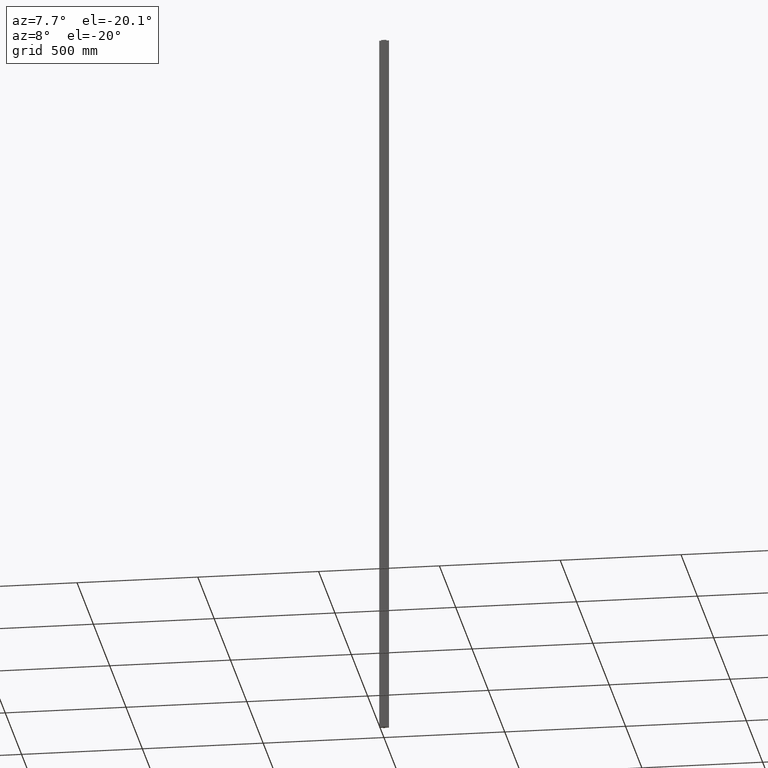
[diagram: clean part render]
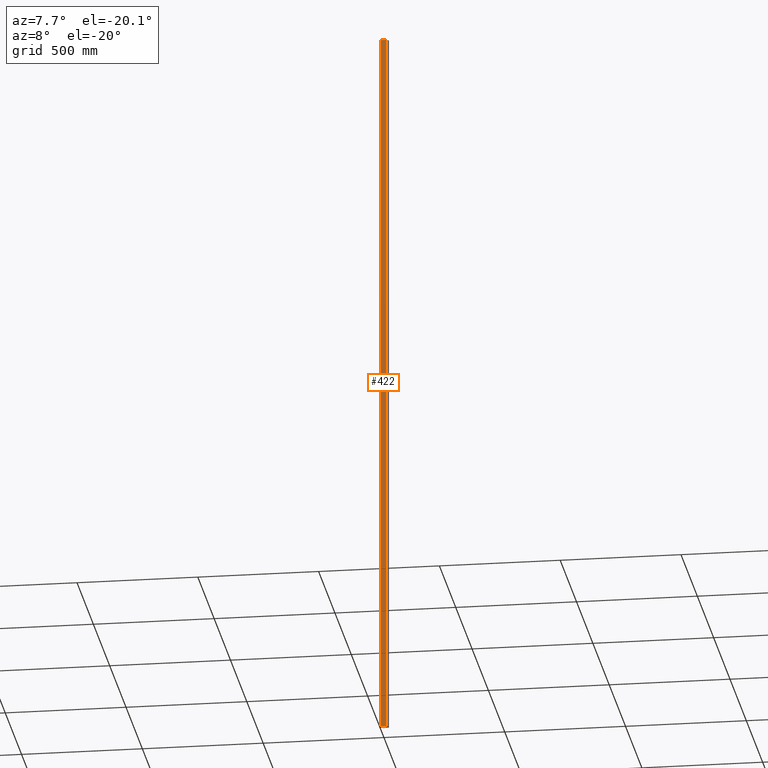
[diagram: same view with one face highlighted and labeled with its STEP entity id]
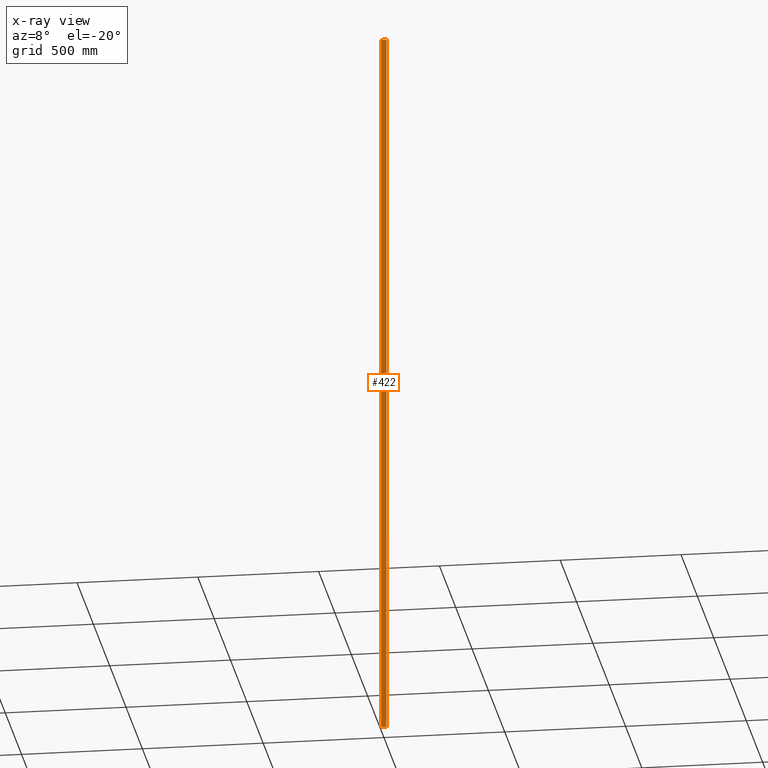
[diagram: x-ray of the same camera — body ghosted, the highlighted face saturated]
A machine part, auxiliary view. The second image highlights one B-rep face of the part: STEP entity #422.
The next image is the same camera in x-ray: the body ghosted, the highlighted face saturated — about 0% of this face is hidden behind the body in this view.
In plain terms, the highlighted planar face has unit normal (0, -1, 0).
Its self-contained STEP definition (entity closure, byte-faithful):
#36=FACE_OUTER_BOUND('',#58,.T.);
#58=EDGE_LOOP('',(#311,#312,#313,#314));
#94=LINE('',#659,#146);
#95=LINE('',#662,#147);
#96=LINE('',#664,#148);
#97=LINE('',#665,#149);
#146=VECTOR('',#539,10.);
#147=VECTOR('',#542,10.);
#148=VECTOR('',#543,10.);
#149=VECTOR('',#544,10.);
#193=VERTEX_POINT('',#655);
#194=VERTEX_POINT('',#657);
#195=VERTEX_POINT('',#661);
#196=VERTEX_POINT('',#663);
#242=EDGE_CURVE('',#193,#194,#94,.T.);
#243=EDGE_CURVE('',#195,#193,#95,.T.);
#244=EDGE_CURVE('',#196,#194,#96,.T.);
#245=EDGE_CURVE('',#195,#196,#97,.T.);
#311=ORIENTED_EDGE('',*,*,#243,.T.);
#312=ORIENTED_EDGE('',*,*,#242,.T.);
#313=ORIENTED_EDGE('',*,*,#244,.F.);
#314=ORIENTED_EDGE('',*,*,#245,.F.);
#402=PLANE('',#471);
#422=ADVANCED_FACE('',(#36),#402,.T.);
#471=AXIS2_PLACEMENT_3D('',#660,#540,#541);
#539=DIRECTION('',(0.,0.,1.));
#540=DIRECTION('center_axis',(0.,-1.,0.));
#541=DIRECTION('ref_axis',(1.,0.,0.));
#542=DIRECTION('',(1.,0.,0.));
#543=DIRECTION('',(1.,0.,0.));
#544=DIRECTION('',(0.,0.,1.));
#655=CARTESIAN_POINT('',(11.,-5.65,0.));
#657=CARTESIAN_POINT('',(11.,-5.65,3000.));
#659=CARTESIAN_POINT('',(11.,-5.65,0.));
#660=CARTESIAN_POINT('Origin',(-11.,-5.65,0.));
#661=CARTESIAN_POINT('',(-11.,-5.65,0.));
#662=CARTESIAN_POINT('',(-11.,-5.65,0.));
#663=CARTESIAN_POINT('',(-11.,-5.65,3000.));
#664=CARTESIAN_POINT('',(-11.,-5.65,3000.));
#665=CARTESIAN_POINT('',(-11.,-5.65,0.));